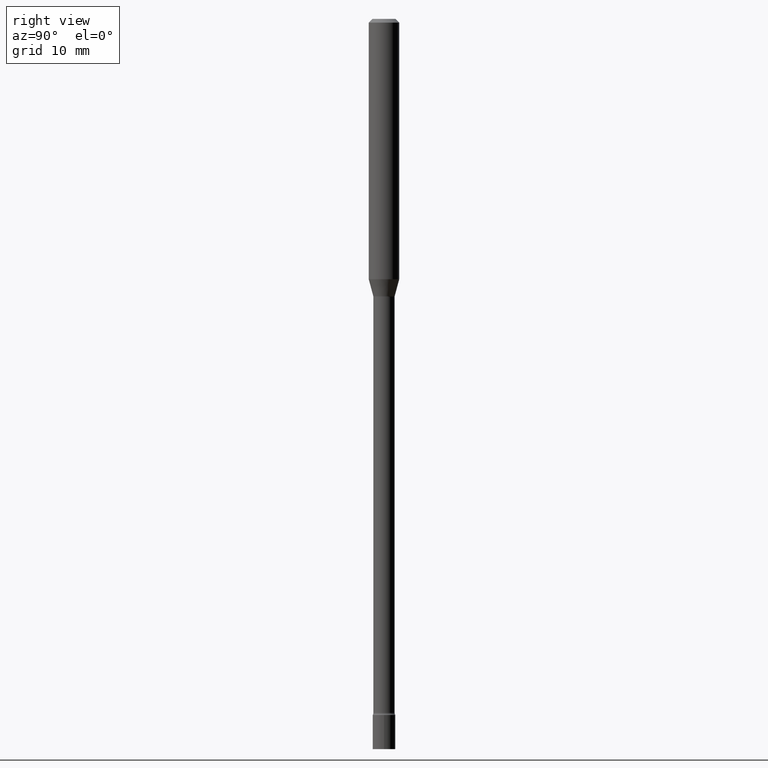
[diagram: clean part render]
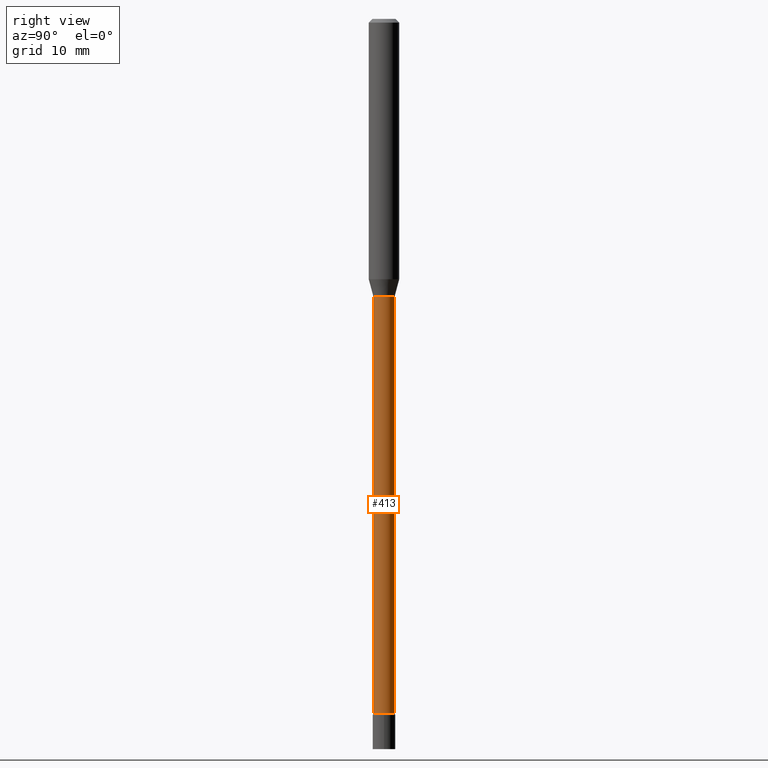
[diagram: same view with one face highlighted and labeled with its STEP entity id]
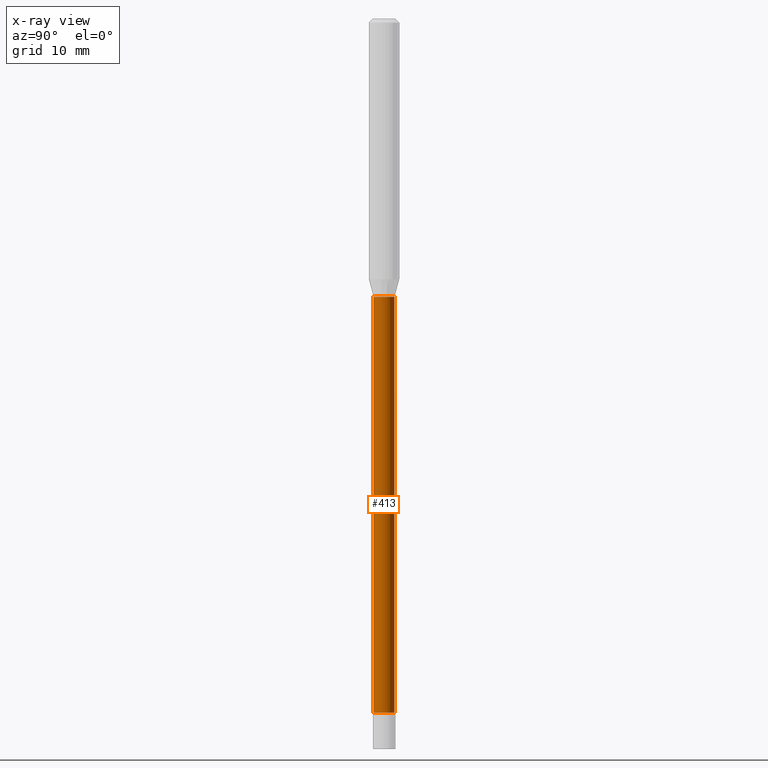
[diagram: x-ray of the same camera — body ghosted, the highlighted face saturated]
A machine part, right view. The second image highlights one B-rep face of the part: STEP entity #413.
The next image is the same camera in x-ray: the body ghosted, the highlighted face saturated — about 0% of this face is hidden behind the body in this view.
In plain terms, the highlighted cylindrical surface (edge-blend (fillet) strip) has radius 1.11 mm, axis along (-0, 0, 1).
Its self-contained STEP definition (entity closure, byte-faithful):
#30 = CYLINDRICAL_SURFACE ( 'NONE', #108, 0.04370000000000010681 ) ;
#36 = CARTESIAN_POINT ( 'NONE',  ( 3.204547738278756968E-16, 0.04369999999999025359, -2.851273030308291823 ) ) ;
#50 = CARTESIAN_POINT ( 'NONE',  ( 3.105071755272341079E-16, 0.04369999999999601287, -1.141974787463811092 ) ) ;
#63 = AXIS2_PLACEMENT_3D ( 'NONE', #295, #466, #134 ) ;
#88 = VERTEX_POINT ( 'NONE', #50 ) ;
#102 = EDGE_LOOP ( 'NONE', ( #174, #304, #119, #140 ) ) ;
#106 = CARTESIAN_POINT ( 'NONE',  ( -3.051554690148215328E-16, -0.04370000000001016127, -2.851273030308291823 ) ) ;
#108 = AXIS2_PLACEMENT_3D ( 'NONE', #145, #391, #443 ) ;
#119 = ORIENTED_EDGE ( 'NONE', *, *, #387, .F. ) ;
#120 = DIRECTION ( 'NONE',  ( -2.445452186311663460E-29, 3.491505139447903761E-15, 1.000000000000000000 ) ) ;
#134 = DIRECTION ( 'NONE',  ( -6.982962677686266711E-15, -1.000000000000000000, 3.125684203277188892E-15 ) ) ;
#137 = LINE ( 'NONE', #293, #259 ) ;
#138 = DIRECTION ( 'NONE',  ( -6.982962677686265922E-15, -1.000000000000000000, 0.000000000000000000 ) ) ;
#140 = ORIENTED_EDGE ( 'NONE', *, *, #439, .F. ) ;
#141 = CARTESIAN_POINT ( 'NONE',  ( -3.051554690148619619E-16, -0.04370000000000398566, -1.141974787463810870 ) ) ;
#145 = CARTESIAN_POINT ( 'NONE',  ( 0.000000000000000000, 0.000000000000000000, 0.000000000000000000 ) ) ;
#150 = EDGE_CURVE ( 'NONE', #256, #155, #169, .T. ) ;
#155 = VERTEX_POINT ( 'NONE', #36 ) ;
#169 = CIRCLE ( 'NONE', #385, 0.04370000000000020396 ) ;
#174 = ORIENTED_EDGE ( 'NONE', *, *, #150, .T. ) ;
#190 = FACE_OUTER_BOUND ( 'NONE', #102, .T. ) ;
#214 = DIRECTION ( 'NONE',  ( -2.445452186311663460E-29, 3.491505139447903761E-15, 1.000000000000000000 ) ) ;
#251 = VECTOR ( 'NONE', #120, 39.37007874015748143 ) ;
#256 = VERTEX_POINT ( 'NONE', #106 ) ;
#259 = VECTOR ( 'NONE', #288, 39.37007874015748143 ) ;
#288 = DIRECTION ( 'NONE',  ( -2.445452186311663460E-29, 3.491505139447903761E-15, 1.000000000000000000 ) ) ;
#293 = CARTESIAN_POINT ( 'NONE',  ( 3.105071755271644416E-16, 0.04370000000000010681, -1.525787745938737526E-16 ) ) ;
#295 = CARTESIAN_POINT ( 'NONE',  ( 2.792644740716173918E-29, -3.987210839549823316E-15, -1.141974787463811092 ) ) ;
#304 = ORIENTED_EDGE ( 'NONE', *, *, #338, .T. ) ;
#338 = EDGE_CURVE ( 'NONE', #155, #88, #137, .T. ) ;
#385 = AXIS2_PLACEMENT_3D ( 'NONE', #426, #214, #138 ) ;
#387 = EDGE_CURVE ( 'NONE', #401, #88, #411, .T. ) ;
#391 = DIRECTION ( 'NONE',  ( -2.445452186311663460E-29, 3.491505139447903761E-15, 1.000000000000000000 ) ) ;
#401 = VERTEX_POINT ( 'NONE', #141 ) ;
#411 = CIRCLE ( 'NONE', #63, 0.04370000000000000273 ) ;
#413 = ADVANCED_FACE ( 'NONE', ( #190 ), #30, .T. ) ;
#426 = CARTESIAN_POINT ( 'NONE',  ( 6.972651865738893707E-29, -9.955234439290598531E-15, -2.851273030308291823 ) ) ;
#439 = EDGE_CURVE ( 'NONE', #256, #401, #510, .T. ) ;
#443 = DIRECTION ( 'NONE',  ( -6.982962677686264344E-15, -1.000000000000000000, 3.491505139447903367E-15 ) ) ;
#466 = DIRECTION ( 'NONE',  ( -2.445452186311663460E-29, 3.491505139447903761E-15, 1.000000000000000000 ) ) ;
#484 = CARTESIAN_POINT ( 'NONE',  ( -3.051554690148905088E-16, -0.04370000000000010681, 1.525787745938737526E-16 ) ) ;
#510 = LINE ( 'NONE', #484, #251 ) ;